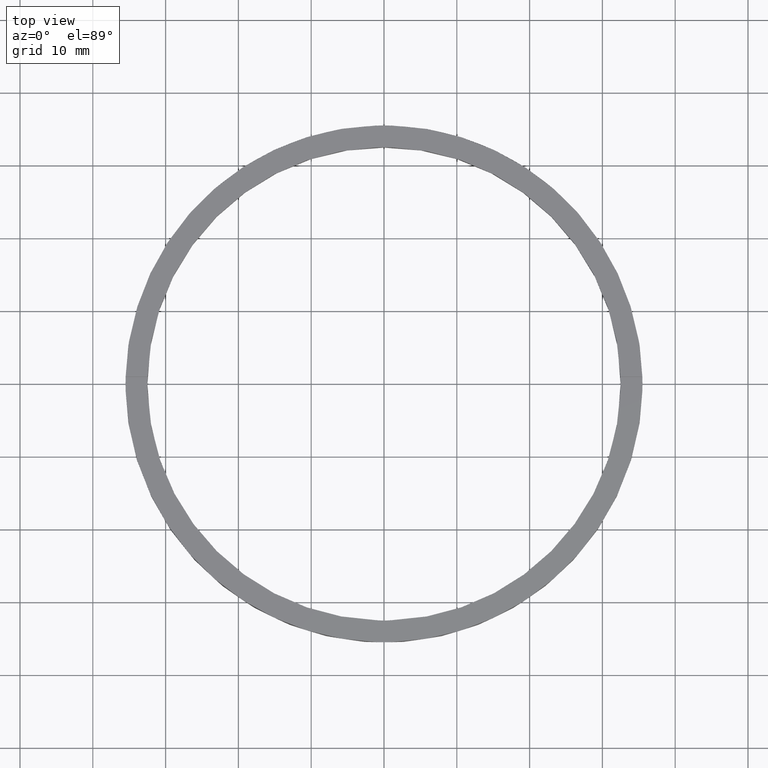
[diagram: clean part render]
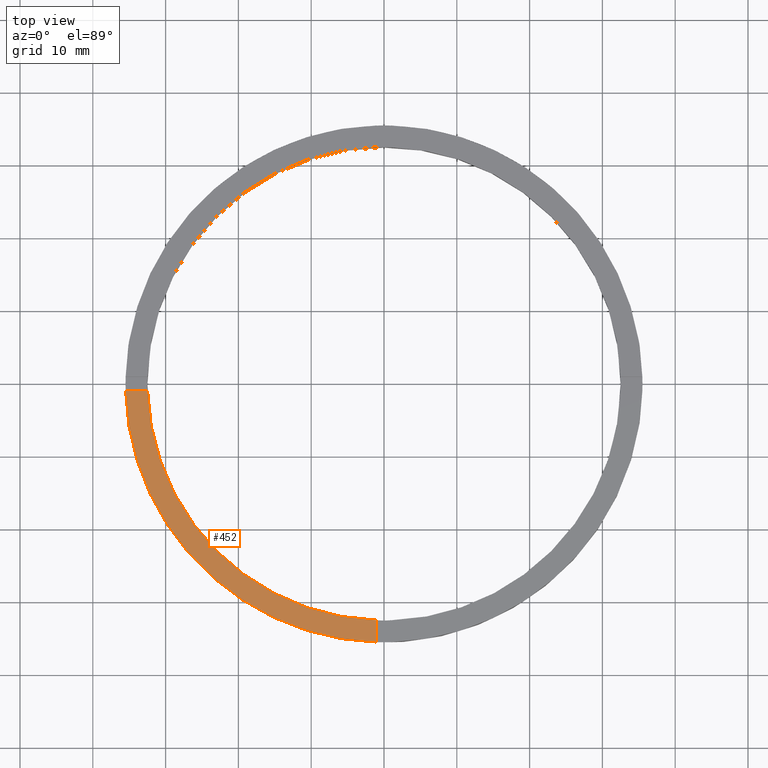
[diagram: same view with one face highlighted and labeled with its STEP entity id]
A machine part, top view. The second image highlights one B-rep face of the part: STEP entity #452.
In plain terms, the highlighted planar face has unit normal (0, 0, 1).
Its self-contained STEP definition (entity closure, byte-faithful):
#18 = EDGE_CURVE ( 'NONE', #723, #457, #150, .T. ) ;
#23 = CARTESIAN_POINT ( 'NONE',  ( -1.000000000000160760, -32.48461174156157227, 3.500000000000000000 ) ) ;
#29 = AXIS2_PLACEMENT_3D ( 'NONE', #780, #488, #398 ) ;
#37 = DIRECTION ( 'NONE',  ( 0.000000000000000000, 0.000000000000000000, 1.000000000000000000 ) ) ;
#54 = CARTESIAN_POINT ( 'NONE',  ( 0.000000000000000000, 0.000000000000000000, 3.500000000000000000 ) ) ;
#55 = AXIS2_PLACEMENT_3D ( 'NONE', #54, #758, #444 ) ;
#56 = CARTESIAN_POINT ( 'NONE',  ( -25.50000000000018829, -1.000000000000024869, 3.500000000000000000 ) ) ;
#64 = DIRECTION ( 'NONE',  ( 1.000000000000000000, 1.951563910473907735E-16, -0.000000000000000000 ) ) ;
#139 = CIRCLE ( 'NONE', #360, 35.50000000000000711 ) ;
#142 = VECTOR ( 'NONE', #564, 1000.000000000000000 ) ;
#150 = LINE ( 'NONE', #705, #142 ) ;
#155 = VERTEX_POINT ( 'NONE', #658 ) ;
#168 = PLANE ( 'NONE',  #55 ) ;
#191 = EDGE_LOOP ( 'NONE', ( #428, #651, #745, #643 ) ) ;
#217 = VERTEX_POINT ( 'NONE', #739 ) ;
#279 = VECTOR ( 'NONE', #64, 1000.000000000000000 ) ;
#306 = EDGE_CURVE ( 'NONE', #155, #457, #139, .T. ) ;
#328 = CARTESIAN_POINT ( 'NONE',  ( 0.000000000000000000, 0.000000000000000000, 3.500000000000000000 ) ) ;
#334 = EDGE_CURVE ( 'NONE', #217, #723, #688, .T. ) ;
#360 = AXIS2_PLACEMENT_3D ( 'NONE', #328, #37, #392 ) ;
#378 = FACE_OUTER_BOUND ( 'NONE', #191, .T. ) ;
#392 = DIRECTION ( 'NONE',  ( 1.000000000000000000, 0.000000000000000000, 0.000000000000000000 ) ) ;
#398 = DIRECTION ( 'NONE',  ( 1.000000000000000000, 0.000000000000000000, 0.000000000000000000 ) ) ;
#428 = ORIENTED_EDGE ( 'NONE', *, *, #18, .F. ) ;
#444 = DIRECTION ( 'NONE',  ( 1.000000000000000000, 0.000000000000000000, -0.000000000000000000 ) ) ;
#452 = ADVANCED_FACE ( 'NONE', ( #378 ), #168, .T. ) ;
#457 = VERTEX_POINT ( 'NONE', #606 ) ;
#488 = DIRECTION ( 'NONE',  ( 0.000000000000000000, 0.000000000000000000, 1.000000000000000000 ) ) ;
#556 = LINE ( 'NONE', #56, #279 ) ;
#564 = DIRECTION ( 'NONE',  ( 1.301042606982605074E-16, -1.000000000000000000, 0.000000000000000000 ) ) ;
#606 = CARTESIAN_POINT ( 'NONE',  ( -1.000000000000160316, -35.48591269785800506, 3.500000000000000000 ) ) ;
#643 = ORIENTED_EDGE ( 'NONE', *, *, #306, .T. ) ;
#651 = ORIENTED_EDGE ( 'NONE', *, *, #334, .F. ) ;
#655 = EDGE_CURVE ( 'NONE', #155, #217, #556, .T. ) ;
#658 = CARTESIAN_POINT ( 'NONE',  ( -35.48591269785801217, -1.000000000000026867, 3.500000000000000000 ) ) ;
#688 = CIRCLE ( 'NONE', #29, 32.50000000000000000 ) ;
#705 = CARTESIAN_POINT ( 'NONE',  ( -1.000000000000161648, -25.50000000000018119, 3.500000000000000000 ) ) ;
#723 = VERTEX_POINT ( 'NONE', #23 ) ;
#739 = CARTESIAN_POINT ( 'NONE',  ( -32.48461174156157227, -1.000000000000026201, 3.500000000000000000 ) ) ;
#745 = ORIENTED_EDGE ( 'NONE', *, *, #655, .F. ) ;
#758 = DIRECTION ( 'NONE',  ( 0.000000000000000000, 0.000000000000000000, 1.000000000000000000 ) ) ;
#780 = CARTESIAN_POINT ( 'NONE',  ( 0.000000000000000000, 0.000000000000000000, 3.500000000000000000 ) ) ;